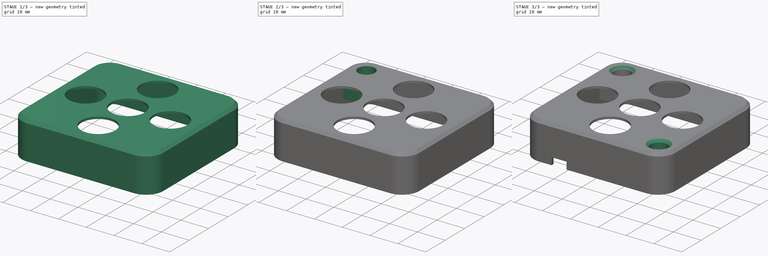
[diagram: build sequence overview — one tinted view per stage of 3, left to right]
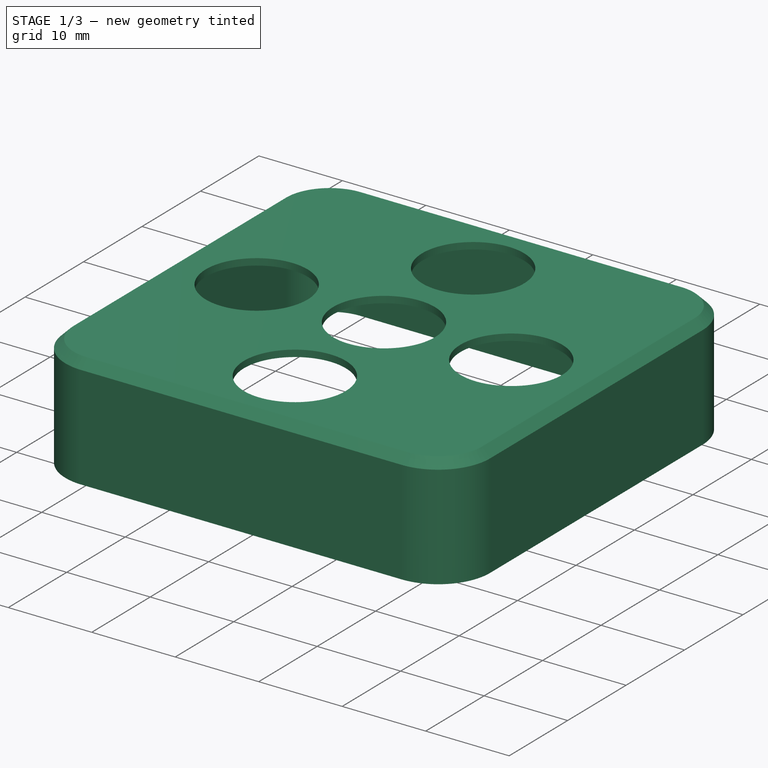
[diagram: stage 1 of 3 — iso view after this stage's code; geometry added in this stage tinted green]
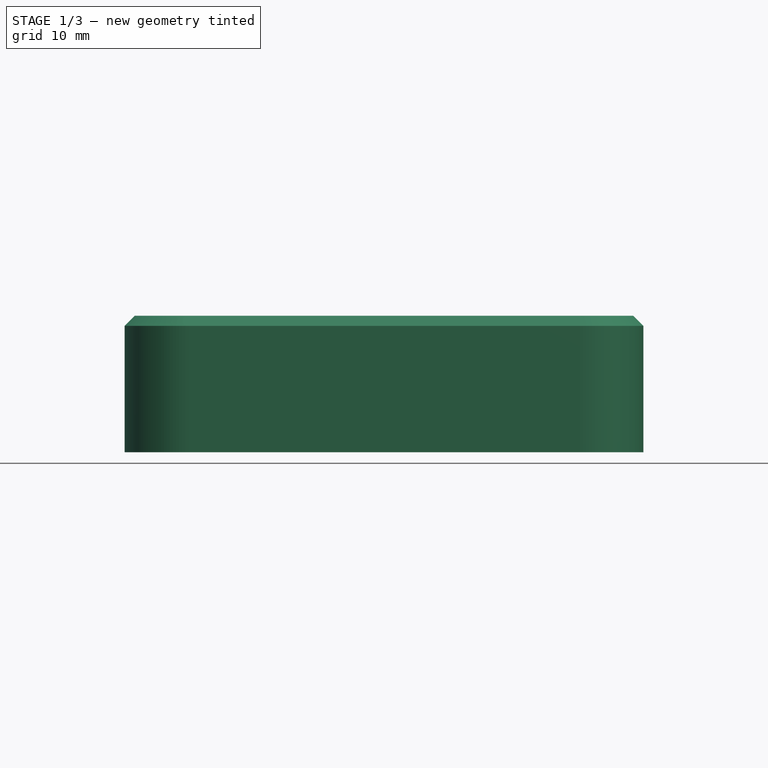
[diagram: stage 1 of 3 — front view after this stage's code; geometry added in this stage tinted green]
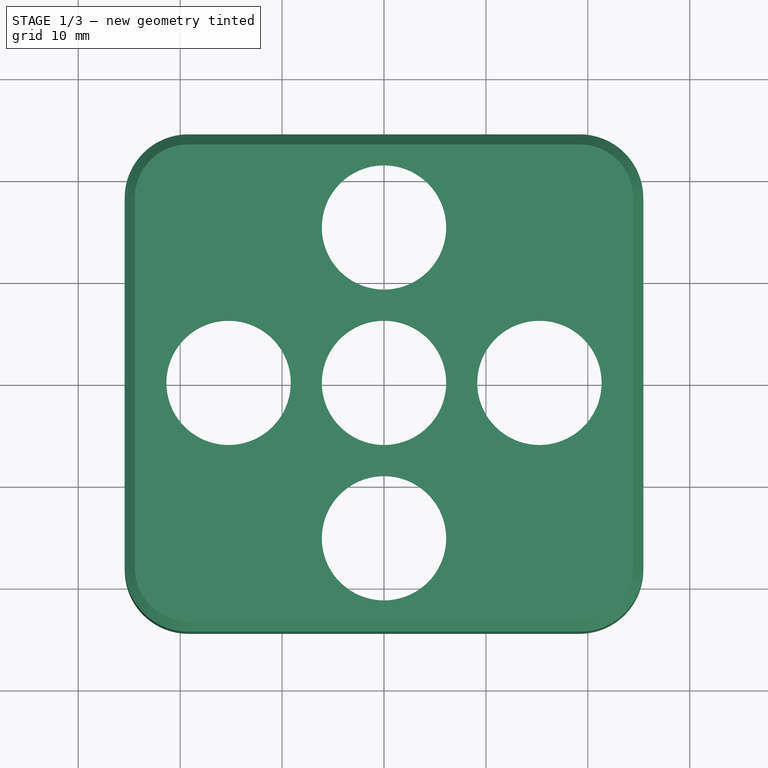
[diagram: stage 1 of 3 — top view after this stage's code; geometry added in this stage tinted green]
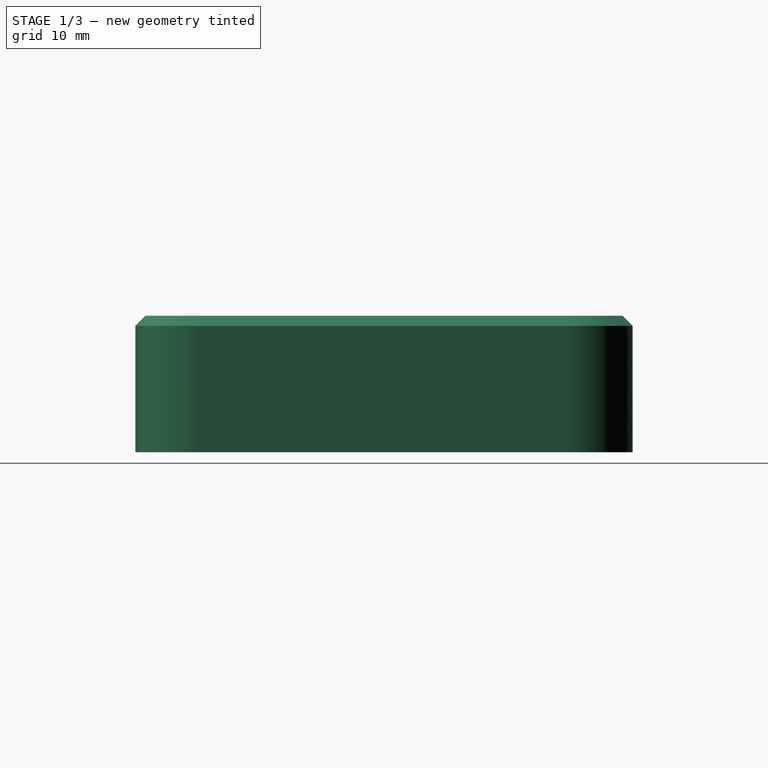
[diagram: stage 1 of 3 — right view after this stage's code; geometry added in this stage tinted green]
FCSTD DOCUMENT  (FreeCAD 0.19R24291 (Git))
Label: keypad-cover
License: Creative Commons Attribution-ShareAlike
LicenseURL: http://creativecommons.org/licenses/by-sa/4.0/
objects: Sketcher::SketchObject×6, PartDesign::Pad×3, PartDesign::CoordinateSystem×3, PartDesign::Chamfer×2, PartDesign::Groove×2, Spreadsheet::Sheet×1, PartDesign::Pocket×1, PartDesign::Body×1, App::Part×1
note: 26 computed .brp shape members not serialized (recipe doc carries the construction recipe); baked Part::Feature solids carry a one-line shape summary decoded from their .brp

FEATURE [Sketcher::SketchObject] Sketch  label="Sketch-base"
  FullyConstrained = true
  MapMode = 5
  Support = -> [XY_Plane]
  expr: Constraints[46] = <<Config>>.wall_width
  sketch-geometry (25):
    g0: LineSegment StartX=-19.195 StartY=23.4 StartZ=0 EndX=19.195 EndY=23.4 EndZ=0
    g1: LineSegment StartX=24.445 StartY=18.15 StartZ=0 EndX=24.445 EndY=-18.15 EndZ=0
    g2: LineSegment StartX=19.195 StartY=-23.4 StartZ=0 EndX=-19.195 EndY=-23.4 EndZ=0
    g3: LineSegment StartX=-24.445 StartY=-18.15 StartZ=0 EndX=-24.445 EndY=18.15 EndZ=0
    g4: LineSegment StartX=-19.195 StartY=24.4 StartZ=0 EndX=19.195 EndY=24.4 EndZ=0
    g5: LineSegment StartX=25.445 StartY=18.15 StartZ=0 EndX=25.445 EndY=-18.15 EndZ=0
    g6: LineSegment StartX=19.195 StartY=-24.4 StartZ=0 EndX=-19.195 EndY=-24.4 EndZ=0
    g7: LineSegment StartX=-25.445 StartY=-18.15 StartZ=0 EndX=-25.445 EndY=18.15 EndZ=0
    g8: Circle CenterX=-15.25 CenterY=0 CenterZ=0 NormalX=0 NormalY=0 NormalZ=1 AngleXU=0 Radius=6.1
    g9: Circle CenterX=0 CenterY=0 CenterZ=0 NormalX=0 NormalY=0 NormalZ=1 AngleXU=0 Radius=6.1
    g10: Circle CenterX=15.25 CenterY=0 CenterZ=0 NormalX=0 NormalY=0 NormalZ=1 AngleXU=0 Radius=6.1
    g11: Circle CenterX=0 CenterY=15.25 CenterZ=0 NormalX=0 NormalY=0 NormalZ=1 AngleXU=0 Radius=6.1
    g12: Circle CenterX=0 CenterY=-15.25 CenterZ=0 NormalX=0 NormalY=0 NormalZ=1 AngleXU=0 Radius=6.1
    g13: ArcOfCircle CenterX=-19.195 CenterY=18.15 CenterZ=0 NormalX=0 NormalY=0 NormalZ=1 AngleXU=0 Radius=6.25 StartAngle=1.5708 EndAngle=3.14159
    g14: ArcOfCircle CenterX=19.195 CenterY=18.15 CenterZ=0 NormalX=0 NormalY=0 NormalZ=1 AngleXU=0 Radius=6.25 StartAngle=0 EndAngle=1.5708
    g15: ArcOfCircle CenterX=19.195 CenterY=-18.15 CenterZ=0 NormalX=0 NormalY=0 NormalZ=1 AngleXU=0 Radius=6.25 StartAngle=4.71239 EndAngle=6.28319
    g16: ArcOfCircle CenterX=-19.195 CenterY=-18.15 CenterZ=0 NormalX=0 NormalY=0 NormalZ=1 AngleXU=0 Radius=6.25 StartAngle=3.14159 EndAngle=4.71239
    g17: ArcOfCircle CenterX=-19.195 CenterY=18.15 CenterZ=0 NormalX=0 NormalY=0 NormalZ=1 AngleXU=0 Radius=5.25 StartAngle=1.5708 EndAngle=3.14159
    g18: ArcOfCircle CenterX=19.195 CenterY=18.15 CenterZ=0 NormalX=0 NormalY=0 NormalZ=1 AngleXU=0 Radius=5.25 StartAngle=0 EndAngle=1.5708
    g19: ArcOfCircle CenterX=19.195 CenterY=-18.15 CenterZ=0 NormalX=0 NormalY=0 NormalZ=1 AngleXU=0 Radius=5.25 StartAngle=4.71239 EndAngle=6.28319
    g20: ArcOfCircle CenterX=-19.195 CenterY=-18.15 CenterZ=0 NormalX=0 NormalY=0 NormalZ=1 AngleXU=0 Radius=5.25 StartAngle=3.14159 EndAngle=4.71239
    g21: LineSegment StartX=-19.14 StartY=18.12 StartZ=0 EndX=18.96 EndY=18.12 EndZ=0
    g22: LineSegment StartX=18.96 StartY=18.12 StartZ=0 EndX=18.96 EndY=-17.5 EndZ=0
    g23: LineSegment StartX=18.96 StartY=-17.5 StartZ=0 EndX=-19.14 EndY=-17.5 EndZ=0
    g24: LineSegment StartX=-19.14 StartY=-17.5 StartZ=0 EndX=-19.14 EndY=18.12 EndZ=0
  constraints (59):
    c: Horizontal(g0)
    c: Horizontal(g2)
    c: Vertical(g1)
    c: Vertical(g3)
    c: Horizontal(g4)
    c: Horizontal(g6)
    c: Vertical(g5)
    c: PointOnObject(g8,g-1)
    c: Coincident(g9,g-1)
    c: PointOnObject(g11,g-2)
    c: Radius(g9) = 6.1
    c: Equal(g8,g9)
    c: Equal(g9,g10)
    c: Equal(g10,g11)
    c: Equal(g11,g12)
    c: Symmetric(g8,g10,g-2)
    c: Symmetric(g11,g12,g-1)
    c: DistanceX(g9,g10) = 15.25
    c: DistanceY(g11) = 15.25
    c: Tangent(g7,g13) = 1.5708
    c: Tangent(g4,g13) = 1.5708
    c: Tangent(g4,g14) = 1.5708
    c: Tangent(g5,g14) = 1.5708
    c: Tangent(g5,g15) = 1.5708
    c: Tangent(g6,g15) = 1.5708
    c: Tangent(g7,g16) = 1.5708
    c: Tangent(g6,g16) = 1.5708
    c: Tangent(g3,g17) = 1.5708
    c: Tangent(g0,g17) = 1.5708
    c: Tangent(g0,g18) = 1.5708
    c: Tangent(g1,g18) = 1.5708
    c: Tangent(g2,g19) = 1.5708
    c: Tangent(g1,g19) = 1.5708
    c: Tangent(g3,g20) = 1.5708
    c: Tangent(g2,g20) = 1.5708
    c: Equal(g17,g18)
    c: Equal(g18,g19)
    c: Equal(g19,g20)
    c: Symmetric(g19,g17,g9)
    c: Radius(g17) = 5.25
    c: Coincident(g13,g17)
    c: Coincident(g15,g19)
    c: Coincident(g16,g20)
    c: Coincident(g14,g18)
    c: DistanceY(g2,g0) = 46.8
    c: DistanceX(g3,g1) = 48.89
    c: DistanceY(g0,g4) = 1
    c: Coincident(g21,g22)
    c: Coincident(g22,g23)
    c: Coincident(g23,g24)
    c: Coincident(g24,g21)
    c: Horizontal(g21)
    c: Horizontal(g23)
    c: Vertical(g22)
    c: Vertical(g24)
    c: DistanceY(g24,g24) = 35.62
    c: DistanceX(g21,g21) = 38.1
    c: DistanceX(g21) = 18.96
    c: DistanceY(g21) = 18.12
FEATURE [PartDesign::Pad] Pad  label="Pad-base"
  Direction = (1,1,1)
  Length = 0.8
  Length2 = 100
  Profile = -> Sketch
  Type = 0
  expr: Length = <<Config>>.roof_thick
FEATURE [Spreadsheet::Sheet] Spreadsheet  label="Config"
  cells = A1=Escornabot Project; A2=keypad-cover; A3=wall-width:; B3(wall_width)=1; A4=roof-thick:; B4(roof_thick)=0.8; A5=screw-hole; A6=diameter; B6(sh_diameter)=2.7; A7=passing-diameter; B7(sh_passing_diameter)==B6 + 0.5; A8=depth; B8(sh_depth)=12; A9=head-recess-diameter; B9(head_recess_diameter)=6
FEATURE [Sketcher::SketchObject] Sketch004  label="Sketch-screw-hole-topleft"
  AttachmentOffset = pos=(-18.98,0,-18.12) rot=(0,0,1;0rad)
  FullyConstrained = true
  MapMode = 5
  Placement = pos=(-18.98,18.12,4e-15) rot=(1,0,0;1.5708rad)
  Support = -> [XZ_Plane]
  expr: Constraints[16] = <<Config>>.head_recess_diameter / 2
  expr: Constraints[12] = <<Config>>.sh_passing_diameter / 2
  sketch-geometry (6):
    g0: LineSegment StartX=3 StartY=2 StartZ=0 EndX=0 EndY=2 EndZ=0
    g1: LineSegment StartX=0 StartY=2 StartZ=0 EndX=0 EndY=-11 EndZ=0
    g2: LineSegment StartX=0 StartY=-11 StartZ=0 EndX=1.6 EndY=-11 EndZ=0
    g3: LineSegment StartX=1.6 StartY=-11 StartZ=0 EndX=1.6 EndY=-7.3 EndZ=0
    g4: LineSegment StartX=1.6 StartY=-7.3 StartZ=0 EndX=3 EndY=-5.9 EndZ=0
    g5: LineSegment StartX=3 StartY=-5.9 StartZ=0 EndX=3 EndY=2 EndZ=0
  constraints (18):
    c: PointOnObject(g0,g-2)
    c: Horizontal(g0)
    c: Coincident(g0,g1)
    c: PointOnObject(g1,g-2)
    c: Coincident(g1,g2)
    c: Horizontal(g2)
    c: Coincident(g2,g3)
    c: Vertical(g3)
    c: Coincident(g3,g4)
    c: Coincident(g4,g5)
    c: Coincident(g5,g0)
    c: Vertical(g5)
    c: DistanceX(g2,g2) = 1.6
    c: DistanceY(g3) = -7.3
    c: DistanceY(g1) = -11
    c: Angle(g4,g1) = 0.785398
    c: DistanceX(g0,g0) = 3
    c: DistanceY(g0) = 2
FEATURE [Sketcher::SketchObject] Sketch005  label="Sketch-walls"
  FullyConstrained = true
  MapMode = 5
  Placement = pos=(0,0,0) rot=(1,0,0;3.14159rad)
  Support = -> [Pad]
  expr: Constraints[46] = <<Config>>.wall_width
  sketch-geometry (25):
    g0: LineSegment StartX=-19.195 StartY=23.4 StartZ=0 EndX=19.195 EndY=23.4 EndZ=0
    g1: LineSegment StartX=24.445 StartY=18.15 StartZ=0 EndX=24.445 EndY=-18.15 EndZ=0
    g2: LineSegment StartX=19.195 StartY=-23.4 StartZ=0 EndX=-19.195 EndY=-23.4 EndZ=0
    g3: LineSegment StartX=-24.445 StartY=-18.15 StartZ=0 EndX=-24.445 EndY=18.15 EndZ=0
    g4: LineSegment StartX=-19.195 StartY=24.4 StartZ=0 EndX=19.195 EndY=24.4 EndZ=0
    g5: LineSegment StartX=25.445 StartY=18.15 StartZ=0 EndX=25.445 EndY=-18.15 EndZ=0
    g6: LineSegment StartX=19.195 StartY=-24.4 StartZ=0 EndX=-19.195 EndY=-24.4 EndZ=0
    g7: LineSegment StartX=-25.445 StartY=-18.15 StartZ=0 EndX=-25.445 EndY=18.15 EndZ=0
    g8: Circle CenterX=-15.25 CenterY=0 CenterZ=0 NormalX=0 NormalY=0 NormalZ=1 AngleXU=0 Radius=6.1
    g9: Circle CenterX=0 CenterY=0 CenterZ=0 NormalX=0 NormalY=0 NormalZ=1 AngleXU=0 Radius=6.1
    g10: Circle CenterX=15.25 CenterY=0 CenterZ=0 NormalX=0 NormalY=0 NormalZ=1 AngleXU=0 Radius=6.1
    g11: Circle CenterX=0 CenterY=15.25 CenterZ=0 NormalX=0 NormalY=0 NormalZ=1 AngleXU=0 Radius=6.1
    g12: Circle CenterX=0 CenterY=-15.25 CenterZ=0 NormalX=0 NormalY=0 NormalZ=1 AngleXU=0 Radius=6.1
    g13: ArcOfCircle CenterX=-19.195 CenterY=18.15 CenterZ=0 NormalX=0 NormalY=0 NormalZ=1 AngleXU=0 Radius=6.25 StartAngle=1.5708 EndAngle=3.14159
    g14: ArcOfCircle CenterX=19.195 CenterY=18.15 CenterZ=0 NormalX=0 NormalY=0 NormalZ=1 AngleXU=0 Radius=6.25 StartAngle=0 EndAngle=1.5708
    g15: ArcOfCircle CenterX=19.195 CenterY=-18.15 CenterZ=0 NormalX=0 NormalY=0 NormalZ=1 AngleXU=0 Radius=6.25 StartAngle=4.71239 EndAngle=6.28319
    g16: ArcOfCircle CenterX=-19.195 CenterY=-18.15 CenterZ=0 NormalX=0 NormalY=0 NormalZ=1 AngleXU=0 Radius=6.25 StartAngle=3.14159 EndAngle=4.71239
    g17: ArcOfCircle CenterX=-19.195 CenterY=18.15 CenterZ=0 NormalX=0 NormalY=0 NormalZ=1 AngleXU=0 Radius=5.25 StartAngle=1.5708 EndAngle=3.14159
    g18: ArcOfCircle CenterX=19.195 CenterY=18.15 CenterZ=0 NormalX=0 NormalY=0 NormalZ=1 AngleXU=0 Radius=5.25 StartAngle=0 EndAngle=1.5708
    g19: ArcOfCircle CenterX=19.195 CenterY=-18.15 CenterZ=0 NormalX=0 NormalY=0 NormalZ=1 AngleXU=0 Radius=5.25 StartAngle=4.71239 EndAngle=6.28319
    g20: ArcOfCircle CenterX=-19.195 CenterY=-18.15 CenterZ=0 NormalX=0 NormalY=0 NormalZ=1 AngleXU=0 Radius=5.25 StartAngle=3.14159 EndAngle=4.71239
    g21: LineSegment StartX=-19.14 StartY=18.12 StartZ=0 EndX=18.96 EndY=18.12 EndZ=0
    g22: LineSegment StartX=18.96 StartY=18.12 StartZ=0 EndX=18.96 EndY=-17.5 EndZ=0
    g23: LineSegment StartX=18.96 StartY=-17.5 StartZ=0 EndX=-19.14 EndY=-17.5 EndZ=0
    g24: LineSegment StartX=-19.14 StartY=-17.5 StartZ=0 EndX=-19.14 EndY=18.12 EndZ=0
  constraints (59):
    c: Horizontal(g0)
    c: Horizontal(g2)
    c: Vertical(g1)
    c: Vertical(g3)
    c: Horizontal(g4)
    c: Horizontal(g6)
    c: Vertical(g5)
    c: PointOnObject(g8,g-1)
    c: Coincident(g9,g-1)
    c: PointOnObject(g11,g-2)
    c: Radius(g9) = 6.1
    c: Equal(g8,g9)
    c: Equal(g9,g10)
    c: Equal(g10,g11)
    c: Equal(g11,g12)
    c: Symmetric(g8,g10,g-2)
    c: Symmetric(g11,g12,g-1)
    c: DistanceX(g9,g10) = 15.25
    c: DistanceY(g11) = 15.25
    c: Tangent(g7,g13) = 1.5708
    c: Tangent(g4,g13) = 1.5708
    c: Tangent(g4,g14) = 1.5708
    c: Tangent(g5,g14) = 1.5708
    c: Tangent(g5,g15) = 1.5708
    c: Tangent(g6,g15) = 1.5708
    c: Tangent(g7,g16) = 1.5708
    c: Tangent(g6,g16) = 1.5708
    c: Tangent(g3,g17) = 1.5708
    c: Tangent(g0,g17) = 1.5708
    c: Tangent(g0,g18) = 1.5708
    c: Tangent(g1,g18) = 1.5708
    c: Tangent(g2,g19) = 1.5708
    c: Tangent(g1,g19) = 1.5708
    c: Tangent(g3,g20) = 1.5708
    c: Tangent(g2,g20) = 1.5708
    c: Equal(g17,g18)
    c: Equal(g18,g19)
    c: Equal(g19,g20)
    c: Symmetric(g19,g17,g9)
    c: Radius(g17) = 5.25
    c: Coincident(g13,g17)
    c: Coincident(g15,g19)
    c: Coincident(g16,g20)
    c: Coincident(g14,g18)
    c: DistanceY(g2,g0) = 46.8
    c: DistanceX(g3,g1) = 48.89
    c: DistanceY(g0,g4) = 1
    c: Coincident(g21,g22)
    c: Coincident(g22,g23)
    c: Coincident(g23,g24)
    c: Coincident(g24,g21)
    c: Horizontal(g21)
    c: Horizontal(g23)
    c: Vertical(g22)
    c: Vertical(g24)
    c: DistanceY(g24,g24) = 35.62
    c: DistanceX(g21,g21) = 38.1
    c: DistanceX(g21) = 18.96
    c: DistanceY(g21) = 18.12
FEATURE [PartDesign::Pad] Pad001  label="Pad-walls"
  BaseFeature = -> Pad
  Direction = (1,1,1)
  Length = 12.6
  Length2 = 100
  Profile = -> Sketch005
  Refine = true
  Type = 0
FEATURE [PartDesign::Chamfer] Chamfer  label="Chamfer-top-border"
  Angle = 45
  Base = -> Pad001 [Edge19,Edge41]
  BaseFeature = -> Pad001
  ChamferType = 0
  FlipDirection = false
  Size = 1
  Size2 = 1
  SupportTransform = false
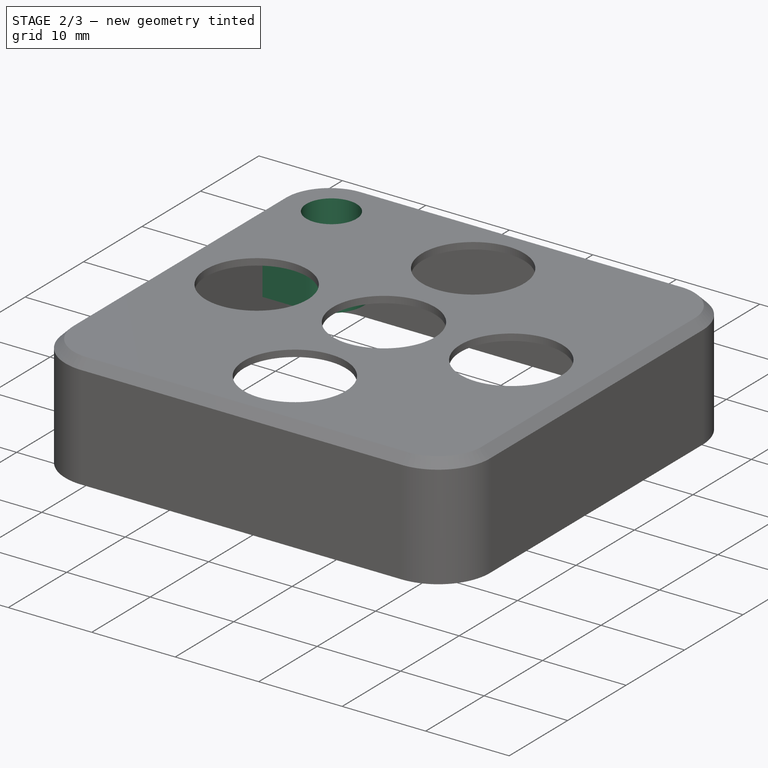
[diagram: stage 2 of 3 — iso view after this stage's code; geometry added in this stage tinted green]
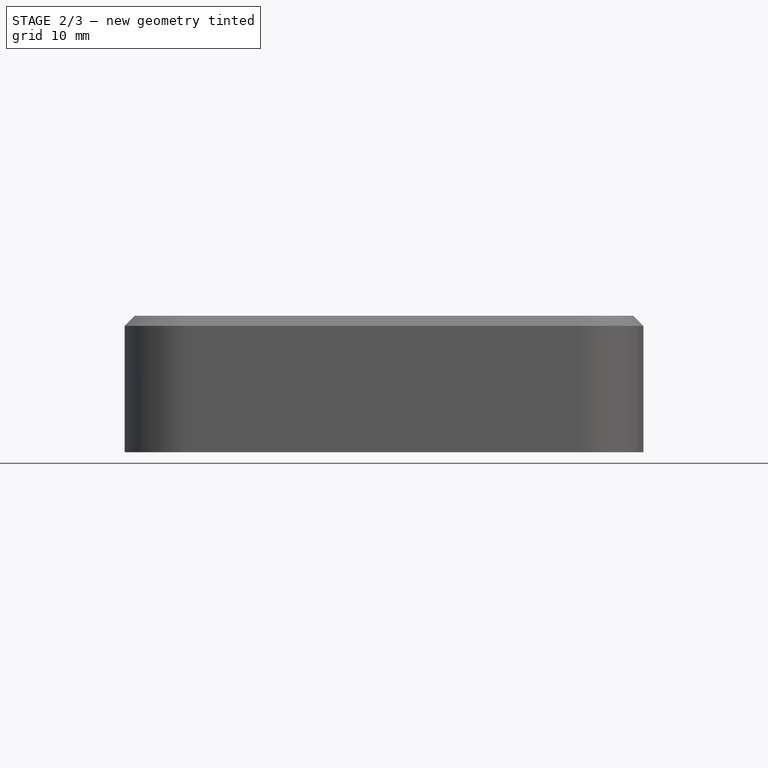
[diagram: stage 2 of 3 — front view after this stage's code; geometry added in this stage tinted green]
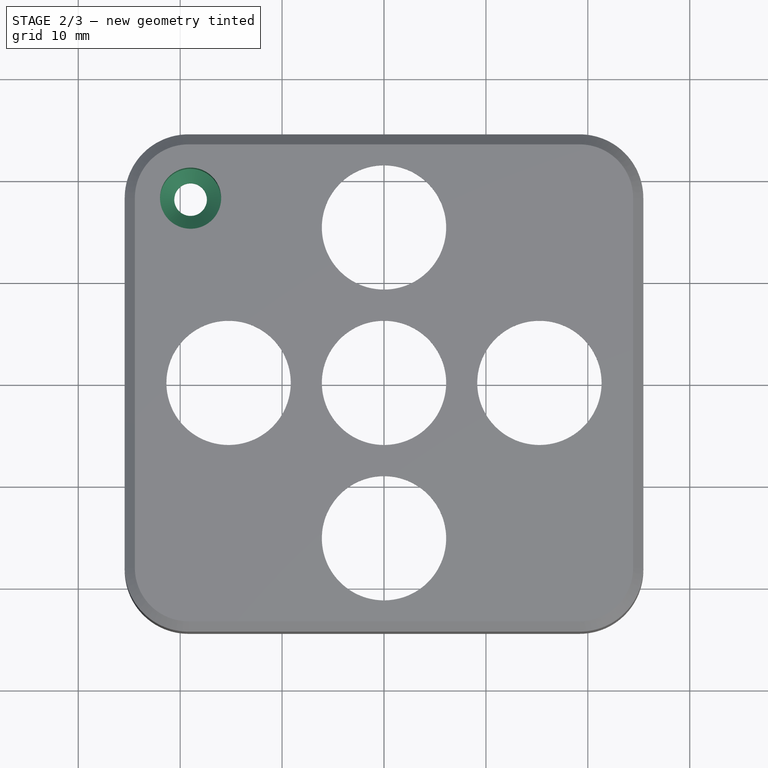
[diagram: stage 2 of 3 — top view after this stage's code; geometry added in this stage tinted green]
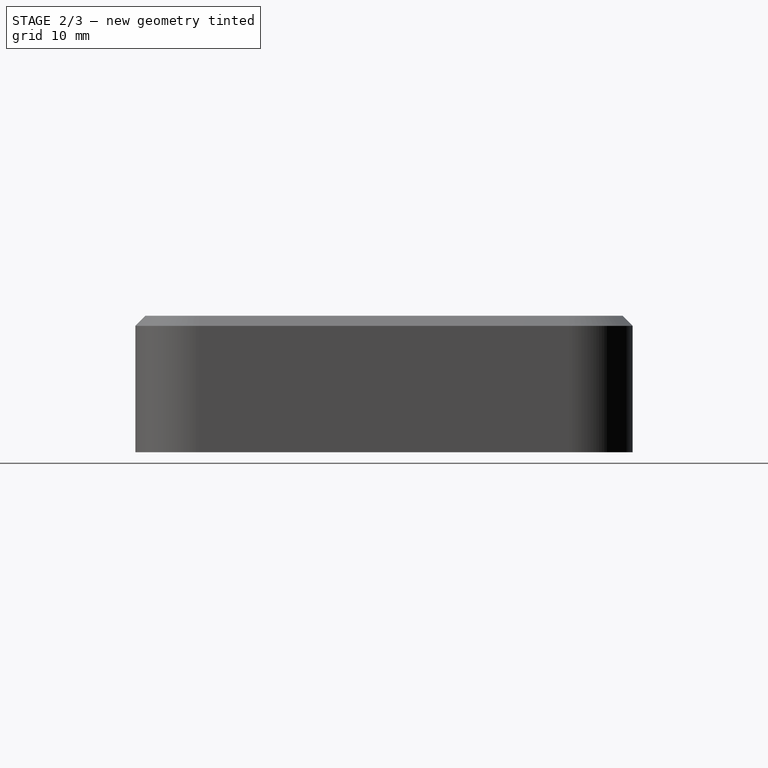
[diagram: stage 2 of 3 — right view after this stage's code; geometry added in this stage tinted green]
FEATURE [Sketcher::SketchObject] Sketch006  label="Sketch-supports"
  FullyConstrained = true
  MapMode = 5
  Support = -> [XY_Plane]
  sketch-geometry (45):
    g0: LineSegment StartX=-19.195 StartY=23.4 StartZ=0 EndX=19.195 EndY=23.4 EndZ=0
    g1: LineSegment StartX=24.445 StartY=18.15 StartZ=0 EndX=24.445 EndY=-18.15 EndZ=0
    g2: LineSegment StartX=19.195 StartY=-23.4 StartZ=0 EndX=-19.195 EndY=-23.4 EndZ=0
    g3: LineSegment StartX=-24.445 StartY=-18.15 StartZ=0 EndX=-24.445 EndY=18.15 EndZ=0
    g4: LineSegment StartX=-19.195 StartY=24.4 StartZ=0 EndX=19.195 EndY=24.4 EndZ=0
    g5: LineSegment StartX=25.445 StartY=18.15 StartZ=0 EndX=25.445 EndY=-18.15 EndZ=0
    g6: LineSegment StartX=19.195 StartY=-24.4 StartZ=0 EndX=-19.195 EndY=-24.4 EndZ=0
    g7: LineSegment StartX=-25.445 StartY=-18.15 StartZ=0 EndX=-25.445 EndY=18.15 EndZ=0
    g8: Circle CenterX=-15.25 CenterY=0 CenterZ=0 NormalX=0 NormalY=0 NormalZ=1 AngleXU=0 Radius=6.1
    g9: Circle CenterX=0 CenterY=0 CenterZ=0 NormalX=0 NormalY=0 NormalZ=1 AngleXU=0 Radius=6.1
    g10: Circle CenterX=15.25 CenterY=0 CenterZ=0 NormalX=0 NormalY=0 NormalZ=1 AngleXU=0 Radius=6.1
    g11: Circle CenterX=0 CenterY=15.25 CenterZ=0 NormalX=0 NormalY=0 NormalZ=1 AngleXU=0 Radius=6.1
    g12: Circle CenterX=0 CenterY=-15.25 CenterZ=0 NormalX=0 NormalY=0 NormalZ=1 AngleXU=0 Radius=6.1
    g13: ArcOfCircle CenterX=-19.195 CenterY=18.15 CenterZ=0 NormalX=0 NormalY=0 NormalZ=1 AngleXU=0 Radius=6.25 StartAngle=1.5708 EndAngle=3.14159
    g14: ArcOfCircle CenterX=19.195 CenterY=18.15 CenterZ=0 NormalX=0 NormalY=0 NormalZ=1 AngleXU=0 Radius=6.25 StartAngle=0 EndAngle=1.5708
    g15: ArcOfCircle CenterX=19.195 CenterY=-18.15 CenterZ=0 NormalX=0 NormalY=0 NormalZ=1 AngleXU=0 Radius=6.25 StartAngle=4.71239 EndAngle=6.28319
    g16: ArcOfCircle CenterX=-19.195 CenterY=-18.15 CenterZ=0 NormalX=0 NormalY=0 NormalZ=1 AngleXU=0 Radius=6.25 StartAngle=3.14159 EndAngle=4.71239
    g17: ArcOfCircle CenterX=-19.195 CenterY=18.15 CenterZ=0 NormalX=0 NormalY=0 NormalZ=1 AngleXU=0 Radius=5.25 StartAngle=1.5708 EndAngle=3.14159
    g18: ArcOfCircle CenterX=19.195 CenterY=18.15 CenterZ=0 NormalX=0 NormalY=0 NormalZ=1 AngleXU=0 Radius=5.25 StartAngle=0 EndAngle=1.5708
    g19: ArcOfCircle CenterX=19.195 CenterY=-18.15 CenterZ=0 NormalX=0 NormalY=0 NormalZ=1 AngleXU=0 Radius=5.25 StartAngle=4.71239 EndAngle=6.28319
    g20: ArcOfCircle CenterX=-19.195 CenterY=-18.15 CenterZ=0 NormalX=0 NormalY=0 NormalZ=1 AngleXU=0 Radius=5.25 StartAngle=3.14159 EndAngle=4.71239
    g21: LineSegment StartX=-19.14 StartY=18.12 StartZ=0 EndX=18.96 EndY=18.12 EndZ=0
    g22: LineSegment StartX=18.96 StartY=18.12 StartZ=0 EndX=18.96 EndY=-17.5 EndZ=0
    g23: LineSegment StartX=18.96 StartY=-17.5 StartZ=0 EndX=-19.14 EndY=-17.5 EndZ=0
    g24: LineSegment StartX=-19.14 StartY=-17.5 StartZ=0 EndX=-19.14 EndY=18.12 EndZ=0
    g25: ArcOfCircle CenterX=-19.14 CenterY=18.12 CenterZ=0 NormalX=0 NormalY=0 NormalZ=1 AngleXU=0 Radius=4 StartAngle=4.71239 EndAngle=6.28319
    g26: ArcOfCircle CenterX=18.96 CenterY=18.12 CenterZ=0 NormalX=0 NormalY=0 NormalZ=1 AngleXU=0 Radius=4 StartAngle=3.14159 EndAngle=4.71239
    g27: ArcOfCircle CenterX=18.96 CenterY=-17.5 CenterZ=0 NormalX=0 NormalY=0 NormalZ=1 AngleXU=0 Radius=4 StartAngle=1.5708 EndAngle=3.14159
    g28: ArcOfCircle CenterX=-19.14 CenterY=-17.5 CenterZ=0 NormalX=0 NormalY=0 NormalZ=1 AngleXU=0 Radius=4 StartAngle=0 EndAngle=1.5708
    g29: LineSegment StartX=-15.14 StartY=18.12 StartZ=0 EndX=-15.14 EndY=23.4 EndZ=0
    g30: LineSegment StartX=14.96 StartY=18.12 StartZ=0 EndX=14.96 EndY=23.4 EndZ=0
    g31: LineSegment StartX=18.96 StartY=14.12 StartZ=0 EndX=24.445 EndY=14.12 EndZ=0
    g32: LineSegment StartX=18.96 StartY=-13.5 StartZ=0 EndX=24.445 EndY=-13.5 EndZ=0
    g33: LineSegment StartX=14.96 StartY=-17.5 StartZ=0 EndX=14.96 EndY=-23.4 EndZ=0
    g34: LineSegment StartX=-15.14 StartY=-17.5 StartZ=0 EndX=-15.14 EndY=-23.4 EndZ=0
    g35: LineSegment StartX=-19.14 StartY=-13.5 StartZ=0 EndX=-24.445 EndY=-13.5 EndZ=0
    g36: LineSegment StartX=-19.14 StartY=14.12 StartZ=0 EndX=-24.445 EndY=14.12 EndZ=0
    g37: LineSegment StartX=-19.195 StartY=23.4 StartZ=0 EndX=-15.14 EndY=23.4 EndZ=0
    g38: LineSegment StartX=-24.445 StartY=18.15 StartZ=0 EndX=-24.445 EndY=14.12 EndZ=0
    g39: LineSegment StartX=14.96 StartY=23.4 StartZ=0 EndX=19.195 EndY=23.4 EndZ=0
    g40: LineSegment StartX=24.445 StartY=18.15 StartZ=0 EndX=24.445 EndY=14.12 EndZ=0
    g41: LineSegment StartX=24.445 StartY=-13.5 StartZ=0 EndX=24.445 EndY=-18.15 EndZ=0
    g42: LineSegment StartX=14.96 StartY=-23.4 StartZ=0 EndX=19.195 EndY=-23.4 EndZ=0
    g43: LineSegment StartX=-19.195 StartY=-23.4 StartZ=0 EndX=-15.14 EndY=-23.4 EndZ=0
    g44: LineSegment StartX=-24.445 StartY=-13.5 StartZ=0 EndX=-24.445 EndY=-18.15 EndZ=0
  constraints (115):
    c: Horizontal(g0)
    c: Horizontal(g2)
    c: Vertical(g1)
    c: Vertical(g3)
    c: Horizontal(g4)
    c: Horizontal(g6)
    c: Vertical(g5)
    c: PointOnObject(g8,g-1)
    c: Coincident(g9,g-1)
    c: PointOnObject(g11,g-2)
    c: Radius(g9) = 6.1
    c: Equal(g8,g9)
    c: Equal(g9,g10)
    c: Equal(g10,g11)
    c: Equal(g11,g12)
    c: Symmetric(g8,g10,g-2)
    c: Symmetric(g11,g12,g-1)
    c: DistanceX(g9,g10) = 15.25
    c: DistanceY(g11) = 15.25
    c: Tangent(g7,g13) = 1.5708
    c: Tangent(g4,g13) = 1.5708
    c: Tangent(g4,g14) = 1.5708
    c: Tangent(g5,g14) = 1.5708
    c: Tangent(g5,g15) = 1.5708
    c: Tangent(g6,g15) = 1.5708
    c: Tangent(g7,g16) = 1.5708
    c: Tangent(g6,g16) = 1.5708
    c: Tangent(g3,g17) = 1.5708
    c: Tangent(g0,g17) = 1.5708
    c: Tangent(g0,g18) = 1.5708
    c: Tangent(g1,g18) = 1.5708
    c: Tangent(g2,g19) = 1.5708
    c: Tangent(g1,g19) = 1.5708
    c: Tangent(g3,g20) = 1.5708
    c: Tangent(g2,g20) = 1.5708
    c: Equal(g17,g18)
    c: Equal(g18,g19)
    c: Equal(g19,g20)
    c: Symmetric(g19,g17,g9)
    c: Radius(g17) = 5.25
    c: Coincident(g13,g17)
    c: Coincident(g15,g19)
    c: Coincident(g16,g20)
    c: Coincident(g14,g18)
    c: DistanceY(g2,g0) = 46.8
    c: DistanceX(g3,g1) = 48.89
    c: DistanceY(g0,g4) = 1
    c: Coincident(g21,g22)
    c: Coincident(g22,g23)
    c: Coincident(g23,g24)
    c: Coincident(g24,g21)
    c: Horizontal(g21)
    c: Horizontal(g23)
    c: Vertical(g22)
    c: Vertical(g24)
    c: DistanceY(g24,g24) = 35.62
    c: DistanceX(g21,g21) = 38.1
    c: DistanceX(g21) = 18.96
    c: DistanceY(g21) = 18.12
    c: Coincident(g25,g21)
    c: PointOnObject(g25,g21)
    c: PointOnObject(g25,g24)
    c: Radius(g25) = 4
    c: Coincident(g26,g21)
    c: PointOnObject(g26,g21)
    c: PointOnObject(g26,g22)
    c: Coincident(g27,g22)
    c: PointOnObject(g27,g23)
    c: PointOnObject(g27,g22)
    c: Coincident(g28,g23)
    c: PointOnObject(g28,g23)
    c: PointOnObject(g28,g24)
    c: Equal(g28,g27)
    c: Equal(g27,g26)
    c: Equal(g26,g25)
    c: Coincident(g29,g25)
    c: PointOnObject(g29,g0)
    c: Vertical(g29)
    c: Coincident(g30,g26)
    c: PointOnObject(g30,g0)
    c: Vertical(g30)
    c: Coincident(g31,g26)
    c: PointOnObject(g31,g1)
    c: Horizontal(g31)
    c: Coincident(g32,g27)
    c: PointOnObject(g32,g1)
    c: Horizontal(g32)
    c: Coincident(g33,g27)
    c: PointOnObject(g33,g2)
    c: Vertical(g33)
    c: Coincident(g34,g28)
    c: PointOnObject(g34,g2)
    c: Vertical(g34)
    c: Coincident(g35,g28)
    c: PointOnObject(g35,g3)
    c: Horizontal(g35)
    c: Coincident(g36,g25)
    c: PointOnObject(g36,g3)
    c: Horizontal(g36)
    c: Coincident(g37,g17)
    c: Coincident(g37,g29)
    c: Coincident(g38,g17)
    c: Coincident(g38,g36)
    c: Coincident(g39,g30)
    c: Coincident(g39,g18)
    c: Coincident(g40,g18)
    c: Coincident(g40,g31)
    c: Coincident(g41,g32)
    c: Coincident(g41,g19)
    c: Coincident(g42,g33)
    c: Coincident(g42,g19)
    c: Coincident(g43,g20)
    c: Coincident(g43,g34)
    c: Coincident(g44,g35)
    c: Coincident(g44,g20)
FEATURE [PartDesign::Pad] Pad002  label="Pad-supports"
  BaseFeature = -> Chamfer
  Direction = (1,1,1)
  Length = 8.4
  Length2 = 100
  Profile = -> Sketch006
  Reversed = true
  Type = 0
FEATURE [PartDesign::Groove] Groove  label="Groove-screw-hole-topleft"
  Angle = 360
  Axis = (0,-2e-16,1)
  Base = (-18.98,18.12,4e-15)
  BaseFeature = -> Pad002
  Profile = -> Sketch004
  ReferenceAxis = -> Sketch004 [V_Axis]
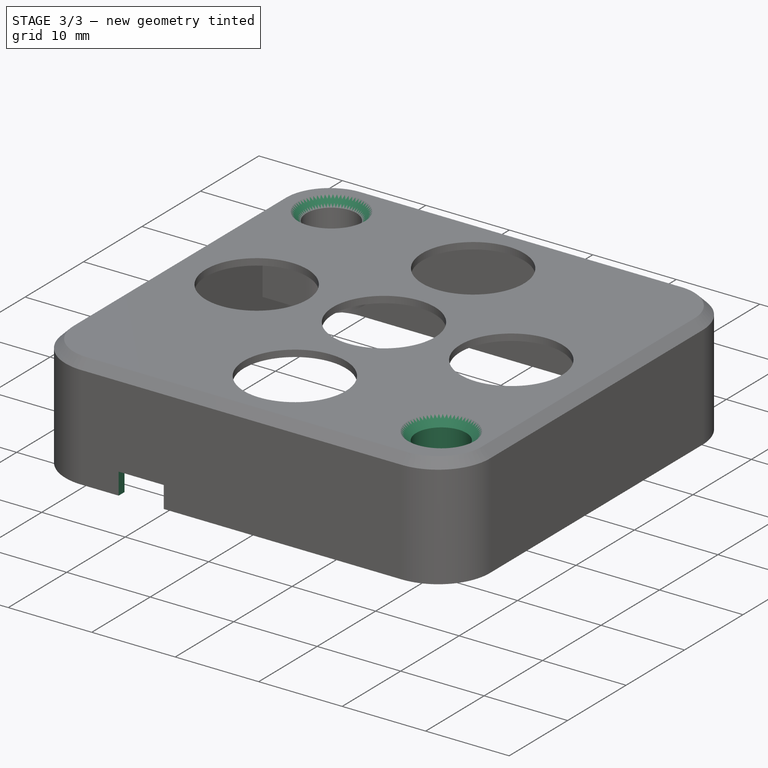
[diagram: stage 3 of 3 — iso view after this stage's code; geometry added in this stage tinted green]
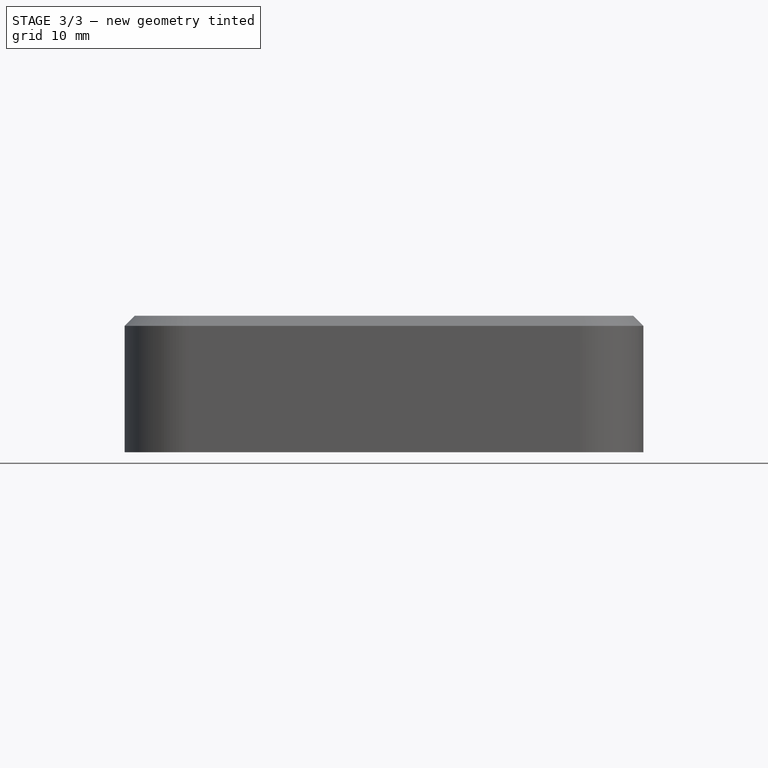
[diagram: stage 3 of 3 — front view after this stage's code; geometry added in this stage tinted green]
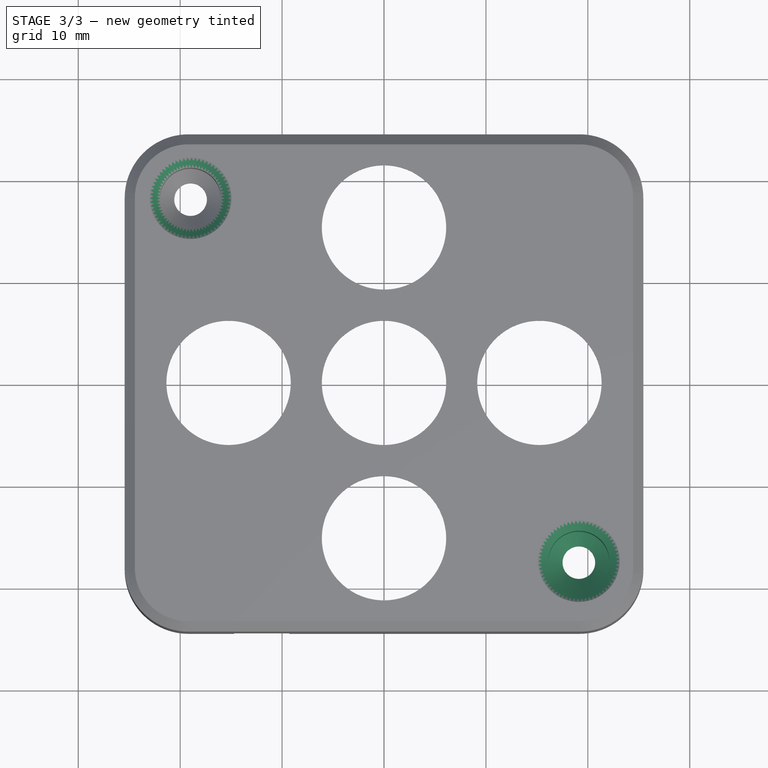
[diagram: stage 3 of 3 — top view after this stage's code; geometry added in this stage tinted green]
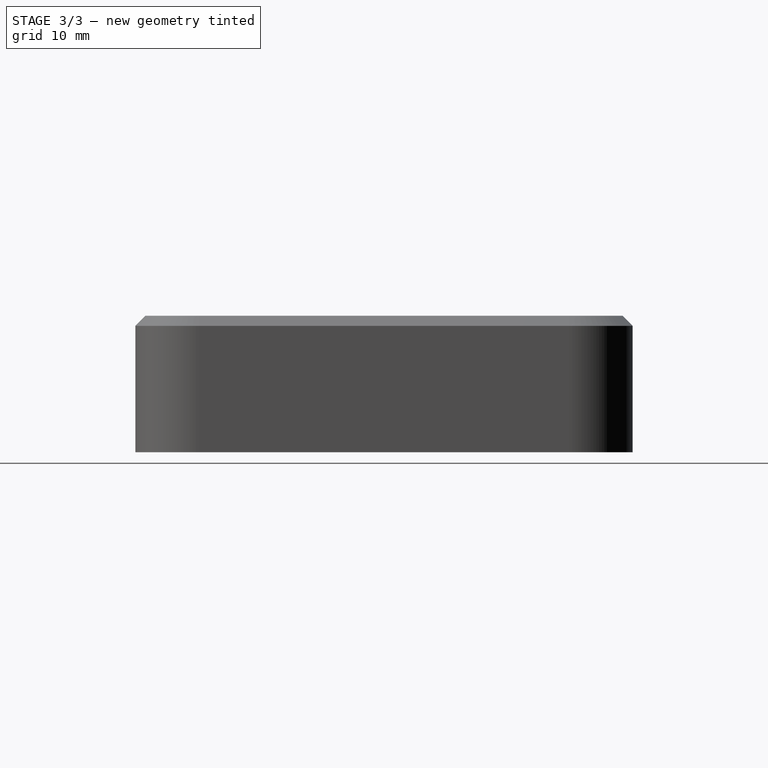
[diagram: stage 3 of 3 — right view after this stage's code; geometry added in this stage tinted green]
FEATURE [Sketcher::SketchObject] Sketch007  label="Sketch-screw-hole-bottomright"
  AttachmentOffset = pos=(19.12,0,17.5) rot=(0,0,1;0rad)
  FullyConstrained = true
  MapMode = 5
  Placement = pos=(19.12,-17.5,-3.9e-15) rot=(1,0,0;1.5708rad)
  Support = -> [XZ_Plane]
  expr: Constraints[10] = <<Config>>.sh_passing_diameter / 2
  expr: Constraints[12] = <<Config>>.head_recess_diameter / 2
  sketch-geometry (6):
    g0: LineSegment StartX=0 StartY=-11 StartZ=0 EndX=1.6 EndY=-11 EndZ=0
    g1: LineSegment StartX=1.6 StartY=-11 StartZ=0 EndX=1.6 EndY=-7.3 EndZ=0
    g2: LineSegment StartX=1.6 StartY=-7.3 StartZ=0 EndX=3 EndY=-5.9 EndZ=0
    g3: LineSegment StartX=3 StartY=-5.9 StartZ=0 EndX=3 EndY=2 EndZ=0
    g4: LineSegment StartX=3 StartY=2 StartZ=0 EndX=0 EndY=2 EndZ=0
    g5: LineSegment StartX=0 StartY=2 StartZ=0 EndX=0 EndY=-11 EndZ=0
  constraints (18):
    c: PointOnObject(g0,g-2)
    c: Horizontal(g0)
    c: Coincident(g0,g1)
    c: Vertical(g1)
    c: Coincident(g1,g2)
    c: Coincident(g2,g3)
    c: Vertical(g3)
    c: Coincident(g3,g4)
    c: PointOnObject(g4,g-2)
    c: Horizontal(g4)
    c: DistanceX(g0,g0) = 1.6
    c: DistanceY(g4) = 2
    c: DistanceX(g4,g4) = 3
    c: DistanceY(g0) = -11
    c: Angle(g2,g-2) = 0.785398
    c: DistanceY(g1) = -7.3
    c: Coincident(g5,g4)
    c: Coincident(g5,g0)
FEATURE [PartDesign::Groove] Groove001  label="Groove-screw-hole-bottomright"
  Angle = 360
  Axis = (0,-2e-16,1)
  Base = (19.12,-17.5,-3.9e-15)
  BaseFeature = -> Groove
  Profile = -> Sketch007
  ReferenceAxis = -> Sketch007 [V_Axis]
FEATURE [Sketcher::SketchObject] Sketch003  label="Sketch-connector-hole"
  FullyConstrained = true
  MapMode = 5
  Placement = pos=(0,-24.4,0) rot=(1,0,0;1.5708rad)
  Support = -> [Groove001]
  sketch-geometry (4):
    g0: LineSegment StartX=-14.7 StartY=-10 StartZ=0 EndX=-9.3 EndY=-10 EndZ=0
    g1: LineSegment StartX=-9.3 StartY=-10 StartZ=0 EndX=-9.3 EndY=-12.7 EndZ=0
    g2: LineSegment StartX=-9.3 StartY=-12.7 StartZ=0 EndX=-14.7 EndY=-12.7 EndZ=0
    g3: LineSegment StartX=-14.7 StartY=-12.7 StartZ=0 EndX=-14.7 EndY=-10 EndZ=0
  constraints (12):
    c: Coincident(g0,g1)
    c: Coincident(g1,g2)
    c: Coincident(g2,g3)
    c: Coincident(g3,g0)
    c: Horizontal(g0)
    c: Horizontal(g2)
    c: Vertical(g1)
    c: Vertical(g3)
    c: DistanceX(g0,g0) = 5.4
    c: DistanceY(g3,g3) = 2.7
    c: DistanceX(g0) = -9.3
    c: DistanceY(g0) = -10
FEATURE [PartDesign::Pocket] Pocket  label="Pocket-connector-hole"
  BaseFeature = -> Groove001
  Length = 2
  Length2 = 100
  Profile = -> Sketch003
  Type = 0
FEATURE [PartDesign::Chamfer] Chamfer001  label="Chamfer-screw-holes"
  Angle = 45
  Base = -> Pocket [Edge160,Edge159]
  BaseFeature = -> Pocket
  ChamferType = 0
  FlipDirection = false
  Size = 1
  Size2 = 1
  SupportTransform = false
FEATURE [PartDesign::Body] Body  label="Body-keypad-cover"
  Group = -> [Sketch,Pad,Sketch003,Sketch004,Sketch005,Pad001,Chamfer,Sketch006,Pad002,Groove,Sketch007,Groove001,Pocket,Chamfer001]
  Origin = -> Origin
  Tip = -> Chamfer001
FEATURE [PartDesign::CoordinateSystem] LCS_screw1
  AttacherType = Attacher::AttachEngine3D
  AttachmentOffset = pos=(0,0,1) rot=(0,0,-1;1.5708rad)
  MapMode = 11
  Placement = pos=(-18.98,18.12,-6.3) rot=(0,0,1;0rad)
  Support = -> [Chamfer001]
FEATURE [PartDesign::CoordinateSystem] LCS_screw2
  AttacherType = Attacher::AttachEngine3D
  AttachmentOffset = pos=(0,0,1) rot=(0,0,-1;1.5708rad)
  MapMode = 11
  Placement = pos=(19.12,-17.5,-6.3) rot=(0,0,1;0rad)
  Support = -> [Chamfer001]
FEATURE [PartDesign::CoordinateSystem] LCS_keypad
  AttacherType = Attacher::AttachEngine3D
  AttachmentOffset = pos=(0,0,0) rot=(0,0,-1;1.5708rad)
  MapMode = 11
  Placement = pos=(19.12,-17.5,-8.4) rot=(0,0,1;0rad)
  Support = -> [Chamfer001]
FEATURE [App::Part] Part  label="Part-keypad-cover"
  Group = -> [Body,Spreadsheet,LCS_screw1,LCS_screw2,LCS_keypad]
  Origin = -> Origin001
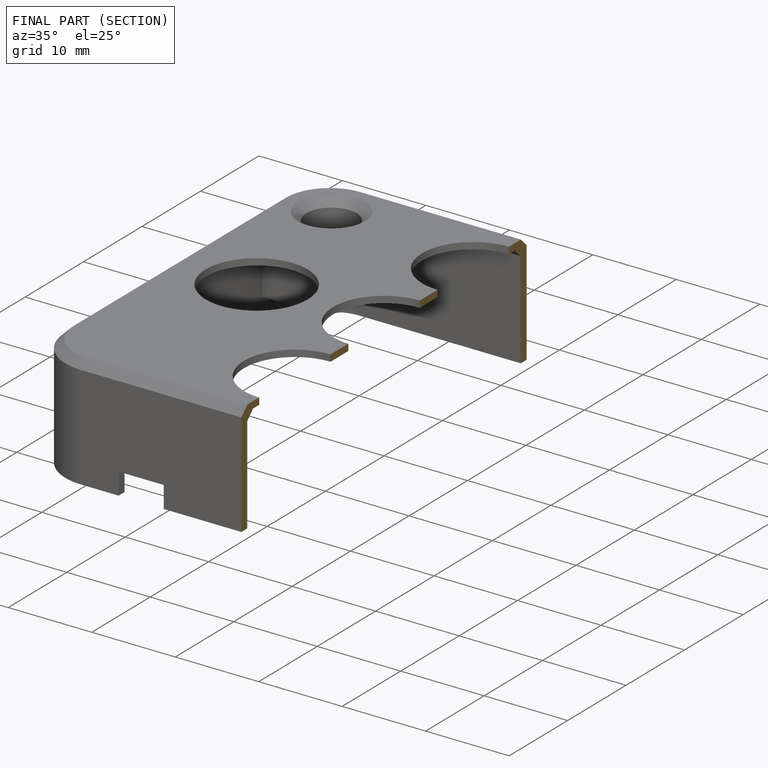
[diagram: finished part — half-section view (interior)]
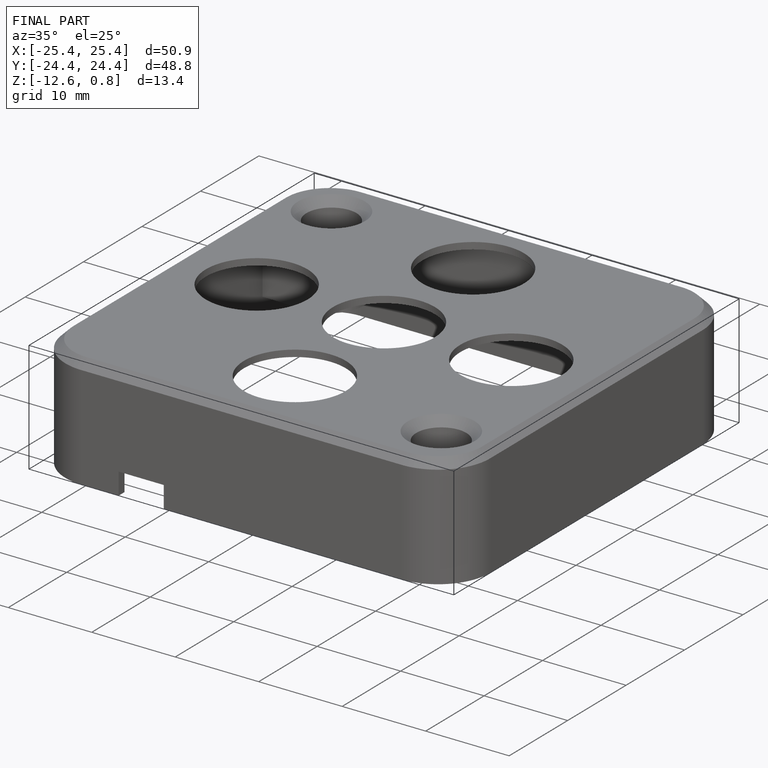
[diagram: finished part — iso view with bounding-box wireframe]
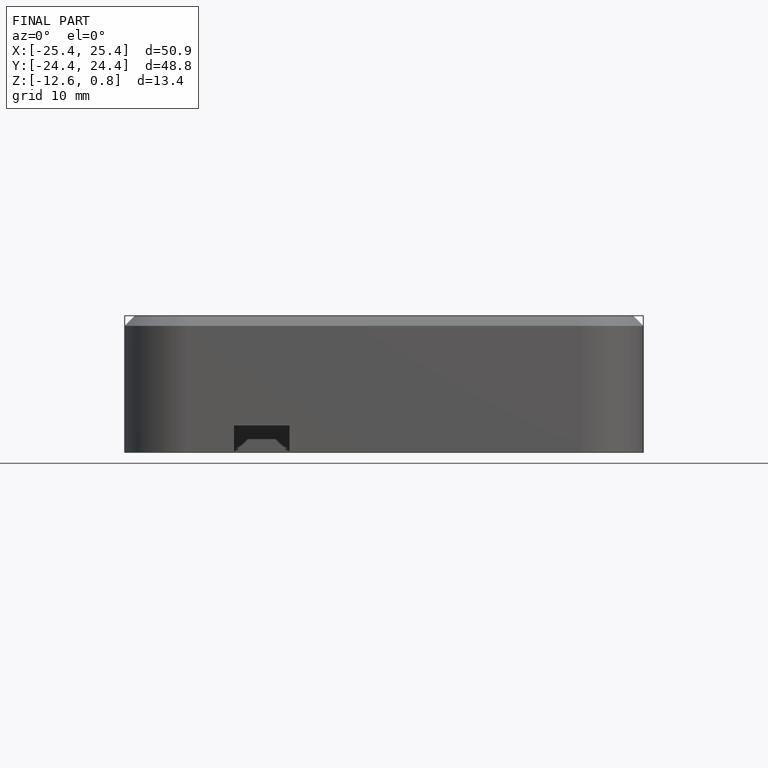
[diagram: finished part — front view with bounding-box wireframe]
